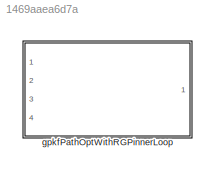
MODEL slx_1469aaea6d7a
KIND library
CONFIG AbsTol = auto
CONFIG EnableMultiTasking = off
CONFIG FixedStep = auto
CONFIG MaxStep = auto
CONFIG MinStep = auto
CONFIG RelTol = 1e-3
CONFIG SampleTimeConstraint = Unconstrained
CONFIG SolverName = VariableStepAuto
CONFIG StartTime = 0.0
CONFIG StopTime = 10.0
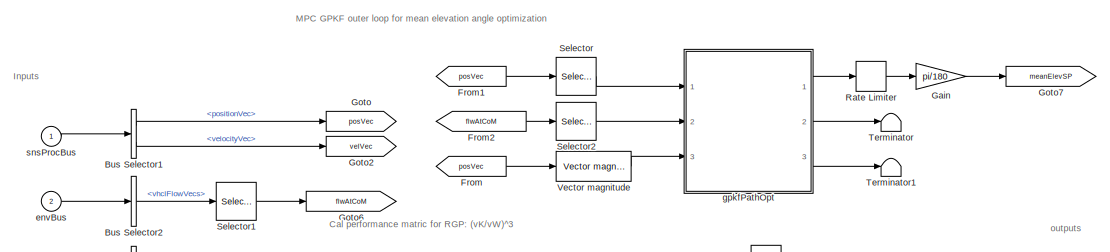
[diagram: gpkfPathOptWithRGPinnerLoop - part 1/2, full width, top band]
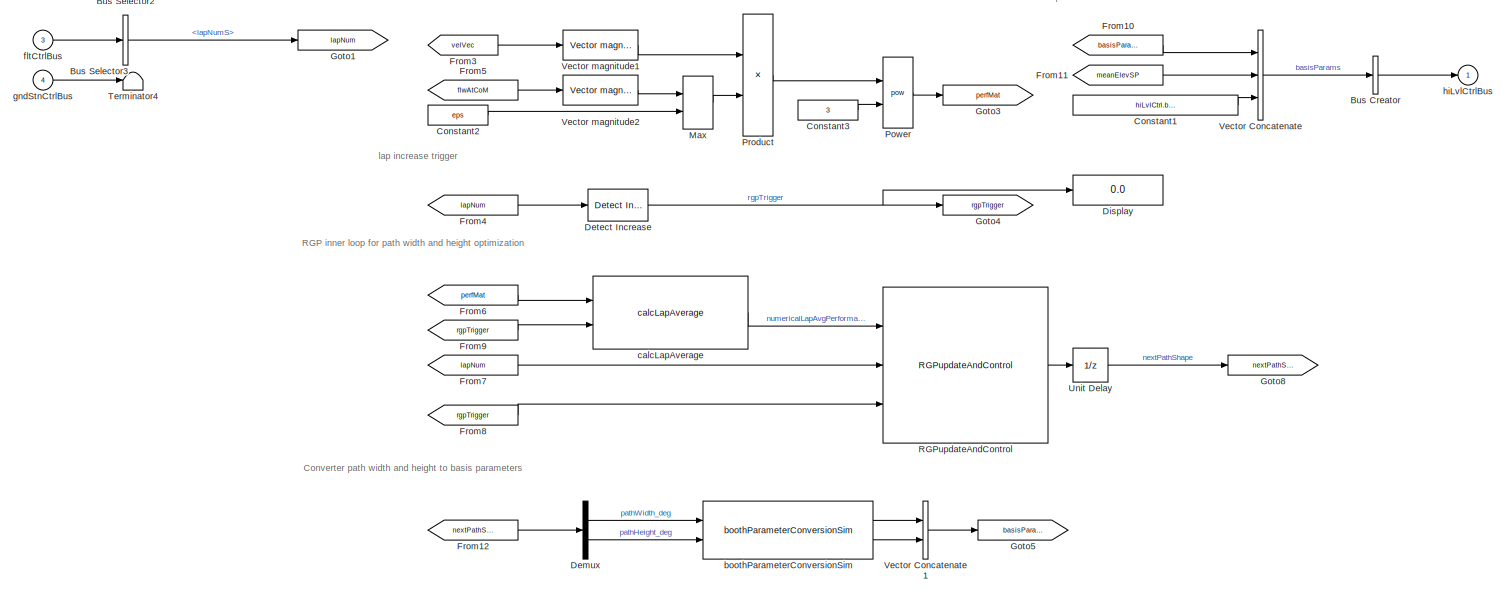
[diagram: gpkfPathOptWithRGPinnerLoop - part 2/2, full width, middle band]
BLOCK [SubSystem] gpkfPathOptWithRGPinnerLoop
  InitFcn = initializeBussesFromBlock(gcb)
  LoadFcn = initializeBussesFromBlock(gcb)
  Ports = [4, 1]
  RequestExecContextInheritance = off
  StartFcn = initializeBussesFromBlock(gcb)
  VariantControl = strcmpi(HILVLCONTROLLER,'gpkfPathOptWithRGPinnerLoop')
BLOCK [BusCreator] gpkfPathOptWithRGPinnerLoop/Bus Creator
  DisplayOption = bar
  InheritFromInputs = on
  Inputs = 1
  OutDataTypeStr = Bus: hiLvlCtrlBus
  Ports = [1, 1]
BLOCK [BusSelector] gpkfPathOptWithRGPinnerLoop/Bus Selector1
  OutputSignals = positionVec,velocityVec
  Ports = [1, 2]
BLOCK [BusSelector] gpkfPathOptWithRGPinnerLoop/Bus Selector2
  OutputSignals = vhclFlowVecs
  Ports = [1, 1]
BLOCK [BusSelector] gpkfPathOptWithRGPinnerLoop/Bus Selector3
  OutputSignals = lapNumS
  Ports = [1, 1]
BLOCK [Constant] gpkfPathOptWithRGPinnerLoop/Constant1
  Value = hiLvlCtrl.basisParams.Value(4:5)
BLOCK [Constant] gpkfPathOptWithRGPinnerLoop/Constant2
  Value = eps
BLOCK [Constant] gpkfPathOptWithRGPinnerLoop/Constant3
  Value = 3
BLOCK [Demux] gpkfPathOptWithRGPinnerLoop/Demux
  Outputs = 2
  Ports = [1, 2]
BLOCK [Reference] gpkfPathOptWithRGPinnerLoop/Detect Increase  REF=simulink/Logic and Bit
Operations/Detect
Increase
  Ports = [1, 1]
  SourceBlock = simulink/Logic and Bit\nOperations/Detect\nIncrease
  SourceProductBaseCode = SL
  SourceType = Detect Increase
BLOCK [Display] gpkfPathOptWithRGPinnerLoop/Display
  Decimation = 1
  Ports = [1]
BLOCK [From] gpkfPathOptWithRGPinnerLoop/From
  GotoTag = posVec
BLOCK [From] gpkfPathOptWithRGPinnerLoop/From1
  GotoTag = posVec
BLOCK [From] gpkfPathOptWithRGPinnerLoop/From10
  GotoTag = basisParamSP
BLOCK [From] gpkfPathOptWithRGPinnerLoop/From11
  GotoTag = meanElevSP
BLOCK [From] gpkfPathOptWithRGPinnerLoop/From12
  GotoTag = nextPathShape
BLOCK [From] gpkfPathOptWithRGPinnerLoop/From2
  GotoTag = flwAtCoM
BLOCK [From] gpkfPathOptWithRGPinnerLoop/From3
  GotoTag = velVec
BLOCK [From] gpkfPathOptWithRGPinnerLoop/From4
  GotoTag = lapNum
BLOCK [From] gpkfPathOptWithRGPinnerLoop/From5
  GotoTag = flwAtCoM
BLOCK [From] gpkfPathOptWithRGPinnerLoop/From6
  GotoTag = perfMat
BLOCK [From] gpkfPathOptWithRGPinnerLoop/From7
  GotoTag = lapNum
BLOCK [From] gpkfPathOptWithRGPinnerLoop/From8
  GotoTag = rgpTrigger
BLOCK [From] gpkfPathOptWithRGPinnerLoop/From9
  GotoTag = rgpTrigger
BLOCK [Gain] gpkfPathOptWithRGPinnerLoop/Gain
  Gain = pi/180
BLOCK [Goto] gpkfPathOptWithRGPinnerLoop/Goto
  GotoTag = posVec
BLOCK [Goto] gpkfPathOptWithRGPinnerLoop/Goto1
  GotoTag = lapNum
BLOCK [Goto] gpkfPathOptWithRGPinnerLoop/Goto2
  GotoTag = velVec
BLOCK [Goto] gpkfPathOptWithRGPinnerLoop/Goto3
  GotoTag = perfMat
BLOCK [Goto] gpkfPathOptWithRGPinnerLoop/Goto4
  GotoTag = rgpTrigger
BLOCK [Goto] gpkfPathOptWithRGPinnerLoop/Goto5
  GotoTag = basisParamSP
BLOCK [Goto] gpkfPathOptWithRGPinnerLoop/Goto6
  GotoTag = flwAtCoM
BLOCK [Goto] gpkfPathOptWithRGPinnerLoop/Goto7
  GotoTag = meanElevSP
BLOCK [Goto] gpkfPathOptWithRGPinnerLoop/Goto8
  GotoTag = nextPathShape
BLOCK [MinMax] gpkfPathOptWithRGPinnerLoop/Max
  Function = max
  Inputs = 2
  Ports = [2, 1]
BLOCK [Math] gpkfPathOptWithRGPinnerLoop/Power
  Operator = pow
  Ports = [2, 1]
BLOCK [Product] gpkfPathOptWithRGPinnerLoop/Product
  Inputs = */
  Ports = [2, 1]
BLOCK [Reference] gpkfPathOptWithRGPinnerLoop/RGPupdateAndControl  REF=optimizePathShapeRGP_ul/RGPupdateAndControl
  Ports = [3, 1]
  SourceBlock = optimizePathShapeRGP_ul/RGPupdateAndControl
BLOCK [RateLimiter] gpkfPathOptWithRGPinnerLoop/Rate Limiter
  FallingSlewLimit = -hiLvlCtrl.rateLimit
  RisingSlewLimit = hiLvlCtrl.rateLimit
  SampleTimeMode = inherited
BLOCK [Selector] gpkfPathOptWithRGPinnerLoop/Selector
  IndexOptions = Index vector (dialog),Index vector (dialog)
  Indices = 3,1
  InputPortWidth = 3
  NumberOfDimensions = 2
  OutputSizes = 1,1
  Ports = [1, 1]
BLOCK [Selector] gpkfPathOptWithRGPinnerLoop/Selector1
  IndexOptions = Select all,Index vector (dialog)
  Indices = [1 3],5
  InputPortWidth = 3
  NumberOfDimensions = 2
  OutputSizes = 1,1
  Ports = [1, 1]
BLOCK [Selector] gpkfPathOptWithRGPinnerLoop/Selector2
  IndexOptions = Index vector (dialog),Index vector (dialog)
  Indices = 1,1
  InputPortWidth = 3
  NumberOfDimensions = 2
  OutputSizes = 1,1
  Ports = [1, 1]
BLOCK [Terminator] gpkfPathOptWithRGPinnerLoop/Terminator
BLOCK [Terminator] gpkfPathOptWithRGPinnerLoop/Terminator1
BLOCK [Terminator] gpkfPathOptWithRGPinnerLoop/Terminator4
BLOCK [UnitDelay] gpkfPathOptWithRGPinnerLoop/Unit Delay
  HasFrameUpgradeWarning = on
  InitialCondition = hiLvlCtrl.initPathShape
  SampleTime = -1
BLOCK [Concatenate] gpkfPathOptWithRGPinnerLoop/Vector Concatenate
  NumInputs = 3
  Ports = [3, 1]
BLOCK [Concatenate] gpkfPathOptWithRGPinnerLoop/Vector Concatenate1
  Ports = [2, 1]
BLOCK [Reference] gpkfPathOptWithRGPinnerLoop/Vector magnitude  REF=calculate_vector_magnitude/Vector magnitude  (lib defined in slx_4d1e83c0815f)
  Ports = [1, 1]
  SourceBlock = calculate_vector_magnitude/Vector magnitude
BLOCK [Reference] gpkfPathOptWithRGPinnerLoop/Vector magnitude1  REF=calculate_vector_magnitude/Vector magnitude  (lib defined in slx_4d1e83c0815f)
  Ports = [1, 1]
  SourceBlock = calculate_vector_magnitude/Vector magnitude
BLOCK [Reference] gpkfPathOptWithRGPinnerLoop/Vector magnitude2  REF=calculate_vector_magnitude/Vector magnitude  (lib defined in slx_4d1e83c0815f)
  Ports = [1, 1]
  SourceBlock = calculate_vector_magnitude/Vector magnitude
BLOCK [Reference] gpkfPathOptWithRGPinnerLoop/boothParameterConversionSim  REF=boothParameterConversionSim_ul/boothParameterConversionSim
  Ports = [2, 2]
  SourceBlock = boothParameterConversionSim_ul/boothParameterConversionSim
  SourceType = SubSystem
BLOCK [Reference] gpkfPathOptWithRGPinnerLoop/calcLapAverage  REF=calc_Lap_Average/calcLapAverage
  Ports = [2, 1]
  SourceBlock = calc_Lap_Average/calcLapAverage
  SourceType = SubSystem
BLOCK [Inport] gpkfPathOptWithRGPinnerLoop/envBus
  Port = 2
BLOCK [Inport] gpkfPathOptWithRGPinnerLoop/fltCtrlBus
  Port = 3
BLOCK [Inport] gpkfPathOptWithRGPinnerLoop/gndStnCtrlBus
  Port = 4
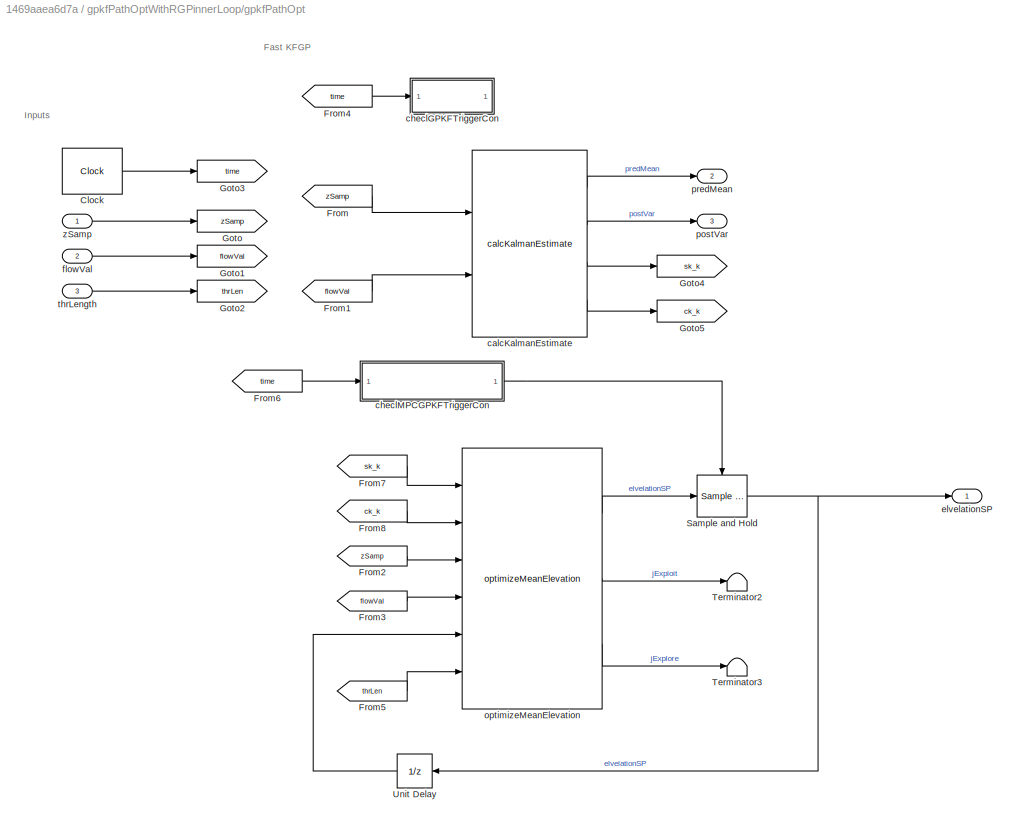
BLOCK [SubSystem] gpkfPathOptWithRGPinnerLoop/gpkfPathOpt
  Ports = [3, 3]
  RequestExecContextInheritance = off
BLOCK [Clock] gpkfPathOptWithRGPinnerLoop/gpkfPathOpt/Clock
  Decimation = 2
  DisplayTime = on
BLOCK [From] gpkfPathOptWithRGPinnerLoop/gpkfPathOpt/From
  GotoTag = zSamp
BLOCK [From] gpkfPathOptWithRGPinnerLoop/gpkfPathOpt/From1
  GotoTag = flowVal
BLOCK [From] gpkfPathOptWithRGPinnerLoop/gpkfPathOpt/From2
  GotoTag = zSamp
BLOCK [From] gpkfPathOptWithRGPinnerLoop/gpkfPathOpt/From3
  GotoTag = flowVal
BLOCK [From] gpkfPathOptWithRGPinnerLoop/gpkfPathOpt/From4
  GotoTag = time
BLOCK [From] gpkfPathOptWithRGPinnerLoop/gpkfPathOpt/From5
  GotoTag = thrLen
BLOCK [From] gpkfPathOptWithRGPinnerLoop/gpkfPathOpt/From6
  GotoTag = time
BLOCK [From] gpkfPathOptWithRGPinnerLoop/gpkfPathOpt/From7
  GotoTag = sk_k
BLOCK [From] gpkfPathOptWithRGPinnerLoop/gpkfPathOpt/From8
  GotoTag = ck_k
BLOCK [Goto] gpkfPathOptWithRGPinnerLoop/gpkfPathOpt/Goto
  GotoTag = zSamp
BLOCK [Goto] gpkfPathOptWithRGPinnerLoop/gpkfPathOpt/Goto1
  GotoTag = flowVal
BLOCK [Goto] gpkfPathOptWithRGPinnerLoop/gpkfPathOpt/Goto2
  GotoTag = thrLen
BLOCK [Goto] gpkfPathOptWithRGPinnerLoop/gpkfPathOpt/Goto3
  GotoTag = time
BLOCK [Goto] gpkfPathOptWithRGPinnerLoop/gpkfPathOpt/Goto4
  GotoTag = sk_k
BLOCK [Goto] gpkfPathOptWithRGPinnerLoop/gpkfPathOpt/Goto5
  GotoTag = ck_k
BLOCK [Reference] gpkfPathOptWithRGPinnerLoop/gpkfPathOpt/Sample and Hold  REF=dspsigops/Sample
and Hold
  Ports = [1, 1, 0, 1]
  SourceBlock = dspsigops/Sample\nand Hold
  SourceProductBaseCode = DS
  SourceType = Sample and Hold
BLOCK [Terminator] gpkfPathOptWithRGPinnerLoop/gpkfPathOpt/Terminator2
BLOCK [Terminator] gpkfPathOptWithRGPinnerLoop/gpkfPathOpt/Terminator3
BLOCK [UnitDelay] gpkfPathOptWithRGPinnerLoop/gpkfPathOpt/Unit Delay
  HasFrameUpgradeWarning = on
  InitialCondition = hiLvlCtrl.initVals
  NameLocation = top
  SampleTime = -1
BLOCK [Reference] gpkfPathOptWithRGPinnerLoop/gpkfPathOpt/calcKalmanEstimate  REF=calcKalmanEstimate_ul/calcKalmanEstimate
  Ports = [2, 4, 0, 1]
  SourceBlock = calcKalmanEstimate_ul/calcKalmanEstimate
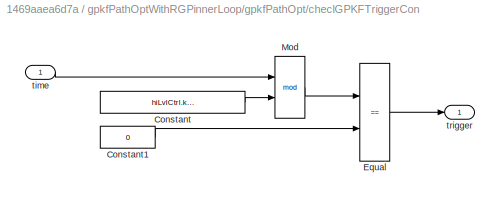
BLOCK [SubSystem] gpkfPathOptWithRGPinnerLoop/gpkfPathOpt/checlGPKFTriggerCon
  Ports = [1, 1]
  RequestExecContextInheritance = off
BLOCK [Constant] gpkfPathOptWithRGPinnerLoop/gpkfPathOpt/checlGPKFTriggerCon/Constant
  Value = hiLvlCtrl.kfgpTimeStep*60
BLOCK [Constant] gpkfPathOptWithRGPinnerLoop/gpkfPathOpt/checlGPKFTriggerCon/Constant1
  Value = 0
BLOCK [RelationalOperator] gpkfPathOptWithRGPinnerLoop/gpkfPathOpt/checlGPKFTriggerCon/Equal
  InputSameDT = off
  Operator = ==
  OutDataTypeStr = boolean
  Ports = [2, 1]
  RndMeth = Simplest
BLOCK [Math] gpkfPathOptWithRGPinnerLoop/gpkfPathOpt/checlGPKFTriggerCon/Mod
  Operator = mod
  Ports = [2, 1]
BLOCK [Inport] gpkfPathOptWithRGPinnerLoop/gpkfPathOpt/checlGPKFTriggerCon/time
BLOCK [Outport] gpkfPathOptWithRGPinnerLoop/gpkfPathOpt/checlGPKFTriggerCon/trigger
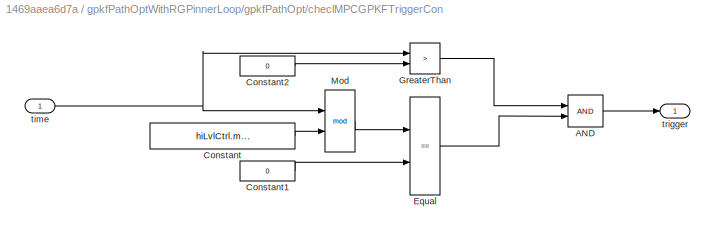
BLOCK [SubSystem] gpkfPathOptWithRGPinnerLoop/gpkfPathOpt/checlMPCGPKFTriggerCon
  Ports = [1, 1]
  RequestExecContextInheritance = off
BLOCK [Logic] gpkfPathOptWithRGPinnerLoop/gpkfPathOpt/checlMPCGPKFTriggerCon/AND
  AllPortsSameDT = off
  IconShape = distinctive
  OutDataTypeStr = boolean
  Ports = [2, 1]
BLOCK [Constant] gpkfPathOptWithRGPinnerLoop/gpkfPathOpt/checlMPCGPKFTriggerCon/Constant
  Value = hiLvlCtrl.mpckfgpTimeStep*60
BLOCK [Constant] gpkfPathOptWithRGPinnerLoop/gpkfPathOpt/checlMPCGPKFTriggerCon/Constant1
  Value = 0
BLOCK [Constant] gpkfPathOptWithRGPinnerLoop/gpkfPathOpt/checlMPCGPKFTriggerCon/Constant2
  Value = 0
BLOCK [RelationalOperator] gpkfPathOptWithRGPinnerLoop/gpkfPathOpt/checlMPCGPKFTriggerCon/Equal
  InputSameDT = off
  Operator = ==
  OutDataTypeStr = boolean
  Ports = [2, 1]
  RndMeth = Simplest
BLOCK [RelationalOperator] gpkfPathOptWithRGPinnerLoop/gpkfPathOpt/checlMPCGPKFTriggerCon/GreaterThan
  InputSameDT = off
  Operator = >
  OutDataTypeStr = boolean
  Ports = [2, 1]
  RndMeth = Simplest
BLOCK [Math] gpkfPathOptWithRGPinnerLoop/gpkfPathOpt/checlMPCGPKFTriggerCon/Mod
  Operator = mod
  Ports = [2, 1]
BLOCK [Inport] gpkfPathOptWithRGPinnerLoop/gpkfPathOpt/checlMPCGPKFTriggerCon/time
BLOCK [Outport] gpkfPathOptWithRGPinnerLoop/gpkfPathOpt/checlMPCGPKFTriggerCon/trigger
BLOCK [Outport] gpkfPathOptWithRGPinnerLoop/gpkfPathOpt/elvelationSP
BLOCK [Inport] gpkfPathOptWithRGPinnerLoop/gpkfPathOpt/flowVal
  Port = 2
BLOCK [Reference] gpkfPathOptWithRGPinnerLoop/gpkfPathOpt/optimizeMeanElevation  REF=optimizeTrajectory_ul/optimizeMeanElevation
  Ports = [6, 3, 0, 1]
  SourceBlock = optimizeTrajectory_ul/optimizeMeanElevation
BLOCK [Outport] gpkfPathOptWithRGPinnerLoop/gpkfPathOpt/postVar
  Port = 3
BLOCK [Outport] gpkfPathOptWithRGPinnerLoop/gpkfPathOpt/predMean
  Port = 2
BLOCK [Inport] gpkfPathOptWithRGPinnerLoop/gpkfPathOpt/thrLength
  Port = 3
BLOCK [Inport] gpkfPathOptWithRGPinnerLoop/gpkfPathOpt/zSamp
BLOCK [Outport] gpkfPathOptWithRGPinnerLoop/hiLvlCtrlBus
BLOCK [Inport] gpkfPathOptWithRGPinnerLoop/snsProcBus
ANNOTATION gpkfPathOptWithRGPinnerLoop: Cal performance matric for RGP: (vK/vW)^3
ANNOTATION gpkfPathOptWithRGPinnerLoop: Converter path width and height to basis parameters
ANNOTATION gpkfPathOptWithRGPinnerLoop: Inputs
ANNOTATION gpkfPathOptWithRGPinnerLoop: MPC GPKF outer loop for mean elevation angle optimization
ANNOTATION gpkfPathOptWithRGPinnerLoop: RGP inner loop for path width and height optimization
ANNOTATION gpkfPathOptWithRGPinnerLoop: lap increase trigger
ANNOTATION gpkfPathOptWithRGPinnerLoop: outputs
ANNOTATION gpkfPathOptWithRGPinnerLoop/gpkfPathOpt: Fast KFGP
ANNOTATION gpkfPathOptWithRGPinnerLoop/gpkfPathOpt: Inputs
LINE gpkfPathOptWithRGPinnerLoop/Bus Creator:1 -> gpkfPathOptWithRGPinnerLoop/hiLvlCtrlBus:1
LINE gpkfPathOptWithRGPinnerLoop/Bus Selector1:1 -> gpkfPathOptWithRGPinnerLoop/Goto:1
LINE gpkfPathOptWithRGPinnerLoop/Bus Selector1:2 -> gpkfPathOptWithRGPinnerLoop/Goto2:1
LINE gpkfPathOptWithRGPinnerLoop/Bus Selector2:1 -> gpkfPathOptWithRGPinnerLoop/Selector1:1
LINE gpkfPathOptWithRGPinnerLoop/Bus Selector3:1 -> gpkfPathOptWithRGPinnerLoop/Goto1:1
LINE gpkfPathOptWithRGPinnerLoop/Constant1:1 -> gpkfPathOptWithRGPinnerLoop/Vector Concatenate:3
LINE gpkfPathOptWithRGPinnerLoop/Constant2:1 -> gpkfPathOptWithRGPinnerLoop/Max:2
LINE gpkfPathOptWithRGPinnerLoop/Constant3:1 -> gpkfPathOptWithRGPinnerLoop/Power:2
LINE gpkfPathOptWithRGPinnerLoop/Demux:1 -> gpkfPathOptWithRGPinnerLoop/boothParameterConversionSim:1
LINE gpkfPathOptWithRGPinnerLoop/Demux:2 -> gpkfPathOptWithRGPinnerLoop/boothParameterConversionSim:2
NET gpkfPathOptWithRGPinnerLoop/Detect Increase:1 -> gpkfPathOptWithRGPinnerLoop/Display:1, gpkfPathOptWithRGPinnerLoop/Goto4:1
LINE gpkfPathOptWithRGPinnerLoop/From10:1 -> gpkfPathOptWithRGPinnerLoop/Vector Concatenate:1
LINE gpkfPathOptWithRGPinnerLoop/From11:1 -> gpkfPathOptWithRGPinnerLoop/Vector Concatenate:2
LINE gpkfPathOptWithRGPinnerLoop/From12:1 -> gpkfPathOptWithRGPinnerLoop/Demux:1
LINE gpkfPathOptWithRGPinnerLoop/From1:1 -> gpkfPathOptWithRGPinnerLoop/Selector:1
LINE gpkfPathOptWithRGPinnerLoop/From2:1 -> gpkfPathOptWithRGPinnerLoop/Selector2:1
LINE gpkfPathOptWithRGPinnerLoop/From3:1 -> gpkfPathOptWithRGPinnerLoop/Vector magnitude1:1
LINE gpkfPathOptWithRGPinnerLoop/From4:1 -> gpkfPathOptWithRGPinnerLoop/Detect Increase:1
LINE gpkfPathOptWithRGPinnerLoop/From5:1 -> gpkfPathOptWithRGPinnerLoop/Vector magnitude2:1
LINE gpkfPathOptWithRGPinnerLoop/From6:1 -> gpkfPathOptWithRGPinnerLoop/calcLapAverage:1
LINE gpkfPathOptWithRGPinnerLoop/From7:1 -> gpkfPathOptWithRGPinnerLoop/RGPupdateAndControl:2
LINE gpkfPathOptWithRGPinnerLoop/From8:1 -> gpkfPathOptWithRGPinnerLoop/RGPupdateAndControl:3
LINE gpkfPathOptWithRGPinnerLoop/From9:1 -> gpkfPathOptWithRGPinnerLoop/calcLapAverage:2
LINE gpkfPathOptWithRGPinnerLoop/From:1 -> gpkfPathOptWithRGPinnerLoop/Vector magnitude:1
LINE gpkfPathOptWithRGPinnerLoop/Gain:1 -> gpkfPathOptWithRGPinnerLoop/Goto7:1
LINE gpkfPathOptWithRGPinnerLoop/Max:1 -> gpkfPathOptWithRGPinnerLoop/Product:2
LINE gpkfPathOptWithRGPinnerLoop/Power:1 -> gpkfPathOptWithRGPinnerLoop/Goto3:1
LINE gpkfPathOptWithRGPinnerLoop/Product:1 -> gpkfPathOptWithRGPinnerLoop/Power:1
LINE gpkfPathOptWithRGPinnerLoop/RGPupdateAndControl:1 -> gpkfPathOptWithRGPinnerLoop/Unit Delay:1
LINE gpkfPathOptWithRGPinnerLoop/Rate Limiter:1 -> gpkfPathOptWithRGPinnerLoop/Gain:1
LINE gpkfPathOptWithRGPinnerLoop/Selector1:1 -> gpkfPathOptWithRGPinnerLoop/Goto6:1
LINE gpkfPathOptWithRGPinnerLoop/Selector2:1 -> gpkfPathOptWithRGPinnerLoop/gpkfPathOpt:2
LINE gpkfPathOptWithRGPinnerLoop/Selector:1 -> gpkfPathOptWithRGPinnerLoop/gpkfPathOpt:1
LINE gpkfPathOptWithRGPinnerLoop/Unit Delay:1 -> gpkfPathOptWithRGPinnerLoop/Goto8:1
LINE gpkfPathOptWithRGPinnerLoop/Vector Concatenate1:1 -> gpkfPathOptWithRGPinnerLoop/Goto5:1
LINE gpkfPathOptWithRGPinnerLoop/Vector Concatenate:1 -> gpkfPathOptWithRGPinnerLoop/Bus Creator:1
LINE gpkfPathOptWithRGPinnerLoop/Vector magnitude1:1 -> gpkfPathOptWithRGPinnerLoop/Product:1
LINE gpkfPathOptWithRGPinnerLoop/Vector magnitude2:1 -> gpkfPathOptWithRGPinnerLoop/Max:1
LINE gpkfPathOptWithRGPinnerLoop/Vector magnitude:1 -> gpkfPathOptWithRGPinnerLoop/gpkfPathOpt:3
LINE gpkfPathOptWithRGPinnerLoop/boothParameterConversionSim:1 -> gpkfPathOptWithRGPinnerLoop/Vector Concatenate1:1
LINE gpkfPathOptWithRGPinnerLoop/boothParameterConversionSim:2 -> gpkfPathOptWithRGPinnerLoop/Vector Concatenate1:2
LINE gpkfPathOptWithRGPinnerLoop/calcLapAverage:1 -> gpkfPathOptWithRGPinnerLoop/RGPupdateAndControl:1
LINE gpkfPathOptWithRGPinnerLoop/envBus:1 -> gpkfPathOptWithRGPinnerLoop/Bus Selector2:1
LINE gpkfPathOptWithRGPinnerLoop/fltCtrlBus:1 -> gpkfPathOptWithRGPinnerLoop/Bus Selector3:1
LINE gpkfPathOptWithRGPinnerLoop/gndStnCtrlBus:1 -> gpkfPathOptWithRGPinnerLoop/Terminator4:1
LINE gpkfPathOptWithRGPinnerLoop/gpkfPathOpt/Clock:1 -> gpkfPathOptWithRGPinnerLoop/gpkfPathOpt/Goto3:1
LINE gpkfPathOptWithRGPinnerLoop/gpkfPathOpt/From1:1 -> gpkfPathOptWithRGPinnerLoop/gpkfPathOpt/calcKalmanEstimate:2
LINE gpkfPathOptWithRGPinnerLoop/gpkfPathOpt/From2:1 -> gpkfPathOptWithRGPinnerLoop/gpkfPathOpt/optimizeMeanElevation:3
LINE gpkfPathOptWithRGPinnerLoop/gpkfPathOpt/From3:1 -> gpkfPathOptWithRGPinnerLoop/gpkfPathOpt/optimizeMeanElevation:4
LINE gpkfPathOptWithRGPinnerLoop/gpkfPathOpt/From4:1 -> gpkfPathOptWithRGPinnerLoop/gpkfPathOpt/checlGPKFTriggerCon:1
LINE gpkfPathOptWithRGPinnerLoop/gpkfPathOpt/From5:1 -> gpkfPathOptWithRGPinnerLoop/gpkfPathOpt/optimizeMeanElevation:6
LINE gpkfPathOptWithRGPinnerLoop/gpkfPathOpt/From6:1 -> gpkfPathOptWithRGPinnerLoop/gpkfPathOpt/checlMPCGPKFTriggerCon:1
LINE gpkfPathOptWithRGPinnerLoop/gpkfPathOpt/From7:1 -> gpkfPathOptWithRGPinnerLoop/gpkfPathOpt/optimizeMeanElevation:1
LINE gpkfPathOptWithRGPinnerLoop/gpkfPathOpt/From8:1 -> gpkfPathOptWithRGPinnerLoop/gpkfPathOpt/optimizeMeanElevation:2
LINE gpkfPathOptWithRGPinnerLoop/gpkfPathOpt/From:1 -> gpkfPathOptWithRGPinnerLoop/gpkfPathOpt/calcKalmanEstimate:1
NET gpkfPathOptWithRGPinnerLoop/gpkfPathOpt/Sample and Hold:1 -> gpkfPathOptWithRGPinnerLoop/gpkfPathOpt/Unit Delay:1, gpkfPathOptWithRGPinnerLoop/gpkfPathOpt/elvelationSP:1
LINE gpkfPathOptWithRGPinnerLoop/gpkfPathOpt/Unit Delay:1 -> gpkfPathOptWithRGPinnerLoop/gpkfPathOpt/optimizeMeanElevation:5
LINE gpkfPathOptWithRGPinnerLoop/gpkfPathOpt/calcKalmanEstimate:1 -> gpkfPathOptWithRGPinnerLoop/gpkfPathOpt/predMean:1
LINE gpkfPathOptWithRGPinnerLoop/gpkfPathOpt/calcKalmanEstimate:2 -> gpkfPathOptWithRGPinnerLoop/gpkfPathOpt/postVar:1
LINE gpkfPathOptWithRGPinnerLoop/gpkfPathOpt/calcKalmanEstimate:3 -> gpkfPathOptWithRGPinnerLoop/gpkfPathOpt/Goto4:1
LINE gpkfPathOptWithRGPinnerLoop/gpkfPathOpt/calcKalmanEstimate:4 -> gpkfPathOptWithRGPinnerLoop/gpkfPathOpt/Goto5:1
LINE gpkfPathOptWithRGPinnerLoop/gpkfPathOpt/checlGPKFTriggerCon/Constant1:1 -> gpkfPathOptWithRGPinnerLoop/gpkfPathOpt/checlGPKFTriggerCon/Equal:2
LINE gpkfPathOptWithRGPinnerLoop/gpkfPathOpt/checlGPKFTriggerCon/Constant:1 -> gpkfPathOptWithRGPinnerLoop/gpkfPathOpt/checlGPKFTriggerCon/Mod:2
LINE gpkfPathOptWithRGPinnerLoop/gpkfPathOpt/checlGPKFTriggerCon/Equal:1 -> gpkfPathOptWithRGPinnerLoop/gpkfPathOpt/checlGPKFTriggerCon/trigger:1
LINE gpkfPathOptWithRGPinnerLoop/gpkfPathOpt/checlGPKFTriggerCon/Mod:1 -> gpkfPathOptWithRGPinnerLoop/gpkfPathOpt/checlGPKFTriggerCon/Equal:1
LINE gpkfPathOptWithRGPinnerLoop/gpkfPathOpt/checlGPKFTriggerCon/time:1 -> gpkfPathOptWithRGPinnerLoop/gpkfPathOpt/checlGPKFTriggerCon/Mod:1
LINE gpkfPathOptWithRGPinnerLoop/gpkfPathOpt/checlMPCGPKFTriggerCon/AND:1 -> gpkfPathOptWithRGPinnerLoop/gpkfPathOpt/checlMPCGPKFTriggerCon/trigger:1
LINE gpkfPathOptWithRGPinnerLoop/gpkfPathOpt/checlMPCGPKFTriggerCon/Constant1:1 -> gpkfPathOptWithRGPinnerLoop/gpkfPathOpt/checlMPCGPKFTriggerCon/Equal:2
LINE gpkfPathOptWithRGPinnerLoop/gpkfPathOpt/checlMPCGPKFTriggerCon/Constant2:1 -> gpkfPathOptWithRGPinnerLoop/gpkfPathOpt/checlMPCGPKFTriggerCon/GreaterThan:2
LINE gpkfPathOptWithRGPinnerLoop/gpkfPathOpt/checlMPCGPKFTriggerCon/Constant:1 -> gpkfPathOptWithRGPinnerLoop/gpkfPathOpt/checlMPCGPKFTriggerCon/Mod:2
LINE gpkfPathOptWithRGPinnerLoop/gpkfPathOpt/checlMPCGPKFTriggerCon/Equal:1 -> gpkfPathOptWithRGPinnerLoop/gpkfPathOpt/checlMPCGPKFTriggerCon/AND:2
LINE gpkfPathOptWithRGPinnerLoop/gpkfPathOpt/checlMPCGPKFTriggerCon/GreaterThan:1 -> gpkfPathOptWithRGPinnerLoop/gpkfPathOpt/checlMPCGPKFTriggerCon/AND:1
LINE gpkfPathOptWithRGPinnerLoop/gpkfPathOpt/checlMPCGPKFTriggerCon/Mod:1 -> gpkfPathOptWithRGPinnerLoop/gpkfPathOpt/checlMPCGPKFTriggerCon/Equal:1
NET gpkfPathOptWithRGPinnerLoop/gpkfPathOpt/checlMPCGPKFTriggerCon/time:1 -> gpkfPathOptWithRGPinnerLoop/gpkfPathOpt/checlMPCGPKFTriggerCon/GreaterThan:1, gpkfPathOptWithRGPinnerLoop/gpkfPathOpt/checlMPCGPKFTriggerCon/Mod:1
LINE gpkfPathOptWithRGPinnerLoop/gpkfPathOpt/checlMPCGPKFTriggerCon:1 -> gpkfPathOptWithRGPinnerLoop/gpkfPathOpt/Sample and Hold:trigger
LINE gpkfPathOptWithRGPinnerLoop/gpkfPathOpt/flowVal:1 -> gpkfPathOptWithRGPinnerLoop/gpkfPathOpt/Goto1:1
LINE gpkfPathOptWithRGPinnerLoop/gpkfPathOpt/optimizeMeanElevation:1 -> gpkfPathOptWithRGPinnerLoop/gpkfPathOpt/Sample and Hold:1
LINE gpkfPathOptWithRGPinnerLoop/gpkfPathOpt/optimizeMeanElevation:2 -> gpkfPathOptWithRGPinnerLoop/gpkfPathOpt/Terminator2:1
LINE gpkfPathOptWithRGPinnerLoop/gpkfPathOpt/optimizeMeanElevation:3 -> gpkfPathOptWithRGPinnerLoop/gpkfPathOpt/Terminator3:1
LINE gpkfPathOptWithRGPinnerLoop/gpkfPathOpt/thrLength:1 -> gpkfPathOptWithRGPinnerLoop/gpkfPathOpt/Goto2:1
LINE gpkfPathOptWithRGPinnerLoop/gpkfPathOpt/zSamp:1 -> gpkfPathOptWithRGPinnerLoop/gpkfPathOpt/Goto:1
LINE gpkfPathOptWithRGPinnerLoop/gpkfPathOpt:1 -> gpkfPathOptWithRGPinnerLoop/Rate Limiter:1
LINE gpkfPathOptWithRGPinnerLoop/gpkfPathOpt:2 -> gpkfPathOptWithRGPinnerLoop/Terminator:1
LINE gpkfPathOptWithRGPinnerLoop/gpkfPathOpt:3 -> gpkfPathOptWithRGPinnerLoop/Terminator1:1
LINE gpkfPathOptWithRGPinnerLoop/snsProcBus:1 -> gpkfPathOptWithRGPinnerLoop/Bus Selector1:1
note: NET lines group one-source signal fan-out (src -> all destinations, sorted); 1:1 wires keep LINE
